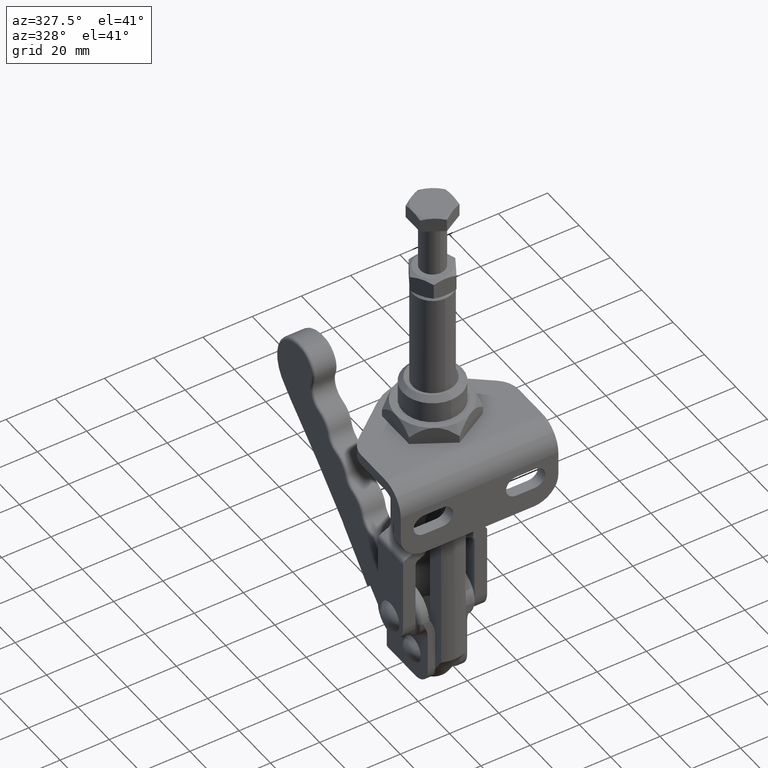
[diagram: clean part render]
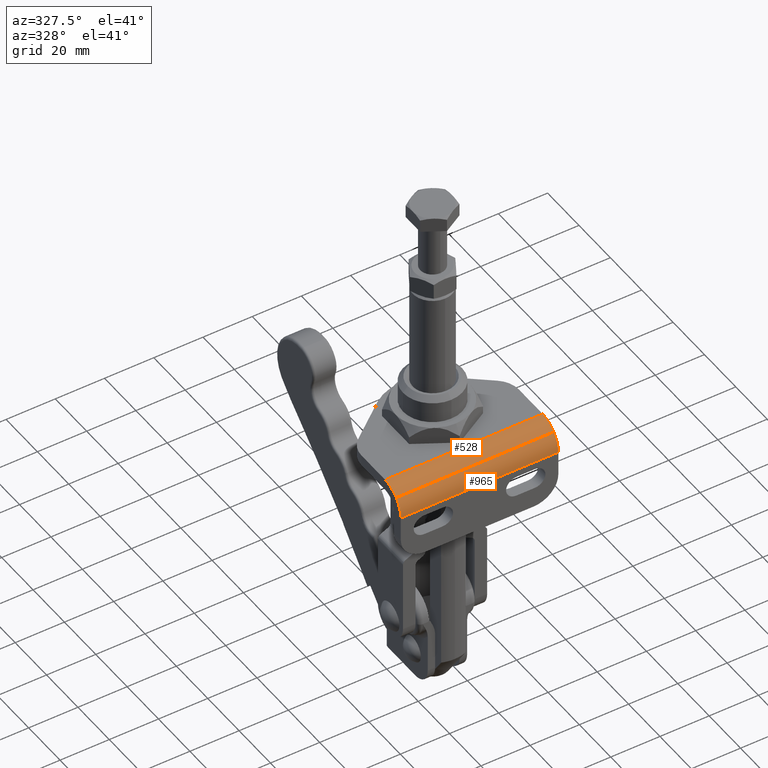
[diagram: same view with one multi-face feature highlighted, each face labeled with its STEP entity id]
A machine part, auxiliary view. The highlighted faces form ONE feature: a constant-radius fillet chain: 2 tangent blend faces with common blend radius 10 mm. The faces share edges in the B-rep.
Their STEP definitions:
[1] entity #965 (Cylinder):
#492=CARTESIAN_POINT('',(-19.899665255311248,-17.221569121075831,-2.928932188134576));
#493=VERTEX_POINT('',#492);
#494=CARTESIAN_POINT('',(44.100334744688531,-17.221569121075831,-2.928932188134576));
#495=VERTEX_POINT('',#494);
#496=CARTESIAN_POINT('',(-19.899665255311248,-17.221569121075831,-2.928932188134576));
#497=DIRECTION('',(1.0,0.0,0.0));
#498=VECTOR('',#497,63.999999999999780);
#499=LINE('',#496,#498);
#500=EDGE_CURVE('',#493,#495,#499,.T.);
#933=CARTESIAN_POINT('',(31.300334744688570,-10.150501309210282,-9.999999999999867));
#934=DIRECTION('',(1.0,0.0,0.0));
#935=DIRECTION('',(0.0,0.382683432365081,0.923879532511290));
#936=AXIS2_PLACEMENT_3D('',#933,#934,#935);
#937=CYLINDRICAL_SURFACE('',#936,9.999999999999922);
#938=ORIENTED_EDGE('',*,*,#500,.F.);
#939=CARTESIAN_POINT('',(-19.899665255311248,-20.150501309210402,-9.999999999999877));
#940=VERTEX_POINT('',#939);
#941=CARTESIAN_POINT('',(-19.899665255311252,-10.150501309210282,-9.999999999999867));
#942=DIRECTION('',(1.0,0.0,0.0));
#943=DIRECTION('',(0.0,0.382683432365081,0.923879532511290));
#944=AXIS2_PLACEMENT_3D('',#941,#942,#943);
#945=CIRCLE('',#944,9.999999999999922);
#946=EDGE_CURVE('',#493,#940,#945,.T.);
#947=ORIENTED_EDGE('',*,*,#946,.T.);
#948=CARTESIAN_POINT('',(44.100334744688531,-20.150501309210402,-9.999999999999877));
#949=VERTEX_POINT('',#948);
#950=CARTESIAN_POINT('',(-19.899665255311248,-20.150501309210402,-9.999999999999877));
#951=DIRECTION('',(1.0,0.0,0.0));
#952=VECTOR('',#951,63.999999999999780);
#953=LINE('',#950,#952);
#954=EDGE_CURVE('',#940,#949,#953,.T.);
#955=ORIENTED_EDGE('',*,*,#954,.T.);
#956=CARTESIAN_POINT('',(44.100334744688531,-10.150501309210282,-9.999999999999867));
#957=DIRECTION('',(-1.0,0.0,0.0));
#958=DIRECTION('',(0.0,0.382683432365081,0.923879532511290));
#959=AXIS2_PLACEMENT_3D('',#956,#957,#958);
#960=CIRCLE('',#959,9.999999999999922);
#961=EDGE_CURVE('',#949,#495,#960,.T.);
#962=ORIENTED_EDGE('',*,*,#961,.T.);
#963=EDGE_LOOP('',(#938,#947,#955,#962));
#964=FACE_OUTER_BOUND('',#963,.T.);
#965=ADVANCED_FACE('',(#964),#937,.T.);
[2] entity #528 (Cylinder):
#487=CARTESIAN_POINT('',(31.300334744688566,-10.150501309210266,-9.999999999999883));
#488=DIRECTION('',(1.0,0.0,0.0));
#489=DIRECTION('',(0.0,0.923879532511283,0.382683432365099));
#490=AXIS2_PLACEMENT_3D('',#487,#488,#489);
#491=CYLINDRICAL_SURFACE('',#490,9.999999999999943);
#492=CARTESIAN_POINT('',(-19.899665255311248,-17.221569121075831,-2.928932188134576));
#493=VERTEX_POINT('',#492);
#494=CARTESIAN_POINT('',(44.100334744688531,-17.221569121075831,-2.928932188134576));
#495=VERTEX_POINT('',#494);
#496=CARTESIAN_POINT('',(-19.899665255311248,-17.221569121075831,-2.928932188134576));
#497=DIRECTION('',(1.0,0.0,0.0));
#498=VECTOR('',#497,63.999999999999780);
#499=LINE('',#496,#498);
#500=EDGE_CURVE('',#493,#495,#499,.T.);
#501=ORIENTED_EDGE('',*,*,#500,.T.);
#502=CARTESIAN_POINT('',(44.100334744688531,-10.150501309210272,0.0));
#503=VERTEX_POINT('',#502);
#504=CARTESIAN_POINT('',(44.100334744688531,-10.150501309210266,-9.999999999999883));
#505=DIRECTION('',(-1.0,0.0,0.0));
#506=DIRECTION('',(0.0,0.923879532511283,0.382683432365099));
#507=AXIS2_PLACEMENT_3D('',#504,#505,#506);
#508=CIRCLE('',#507,9.999999999999943);
#509=EDGE_CURVE('',#495,#503,#508,.T.);
#510=ORIENTED_EDGE('',*,*,#509,.T.);
#511=CARTESIAN_POINT('',(-19.899665255311248,-10.150501309210272,0.0));
#512=VERTEX_POINT('',#511);
#513=CARTESIAN_POINT('',(44.100334744688531,-10.150501309210272,0.0));
#514=DIRECTION('',(-1.0,0.0,0.0));
#515=VECTOR('',#514,63.999999999999780);
#516=LINE('',#513,#515);
#517=EDGE_CURVE('',#503,#512,#516,.T.);
#518=ORIENTED_EDGE('',*,*,#517,.T.);
#519=CARTESIAN_POINT('',(-19.899665255311248,-10.150501309210266,-9.999999999999883));
#520=DIRECTION('',(1.0,0.0,0.0));
#521=DIRECTION('',(0.0,0.923879532511283,0.382683432365099));
#522=AXIS2_PLACEMENT_3D('',#519,#520,#521);
#523=CIRCLE('',#522,9.999999999999943);
#524=EDGE_CURVE('',#512,#493,#523,.T.);
#525=ORIENTED_EDGE('',*,*,#524,.T.);
#526=EDGE_LOOP('',(#501,#510,#518,#525));
#527=FACE_OUTER_BOUND('',#526,.T.);
#528=ADVANCED_FACE('',(#527),#491,.T.);